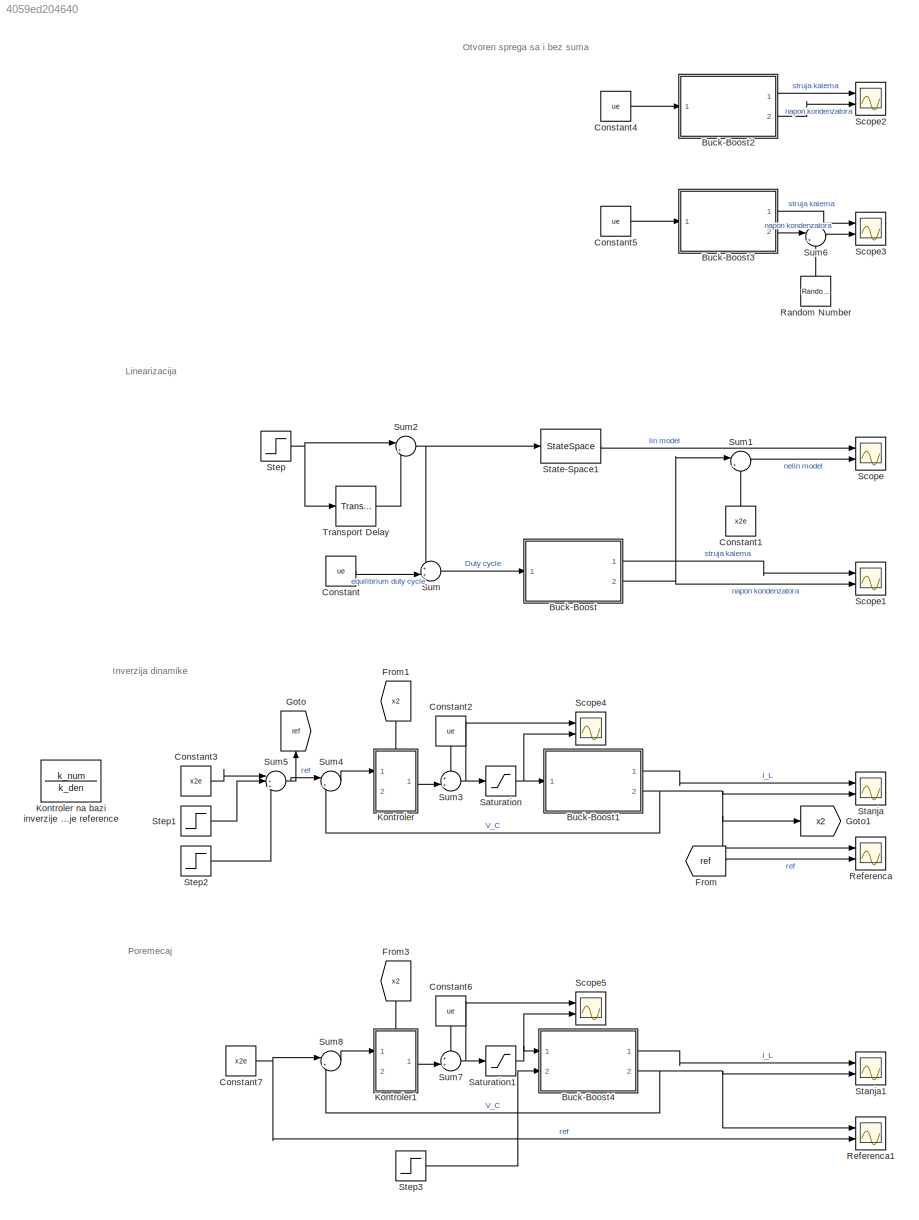
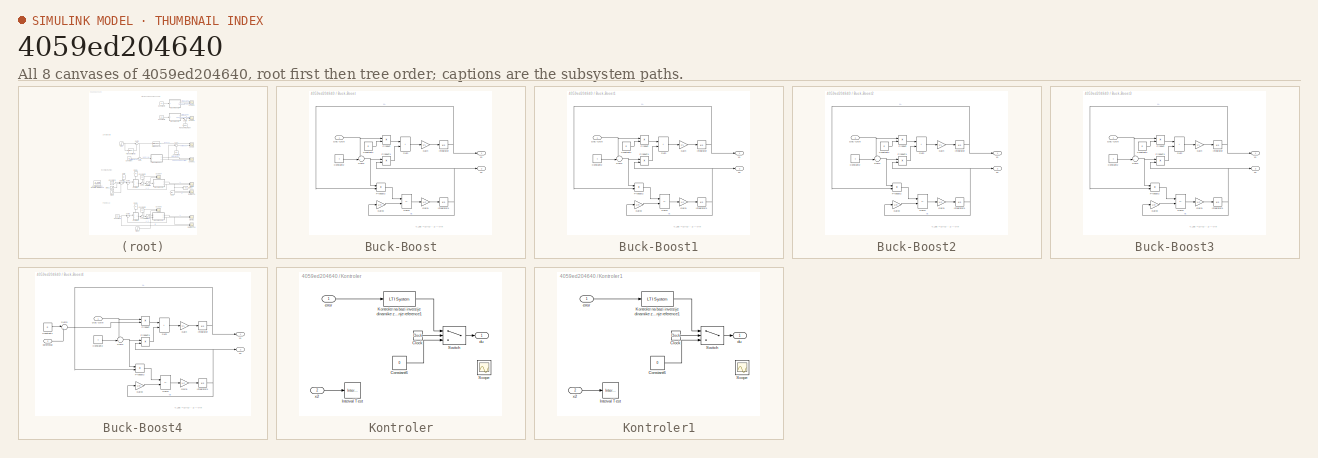
[diagram: thumbnail index - all 8 canvases of the model, root first then tree order]
MODEL slx_4059ed204640
KIND model
CONFIG AbsTol = auto
CONFIG EnableMultiTasking = off
CONFIG FixedStep = 1e-3
CONFIG MaxStep = auto
CONFIG MinStep = auto
CONFIG RelTol = 1e-3
CONFIG SampleTimeConstraint = Unconstrained
CONFIG Solver = FixedStepAuto
CONFIG SolverName = FixedStepAuto
CONFIG StartTime = 0.0
CONFIG StopTime = sim_duration
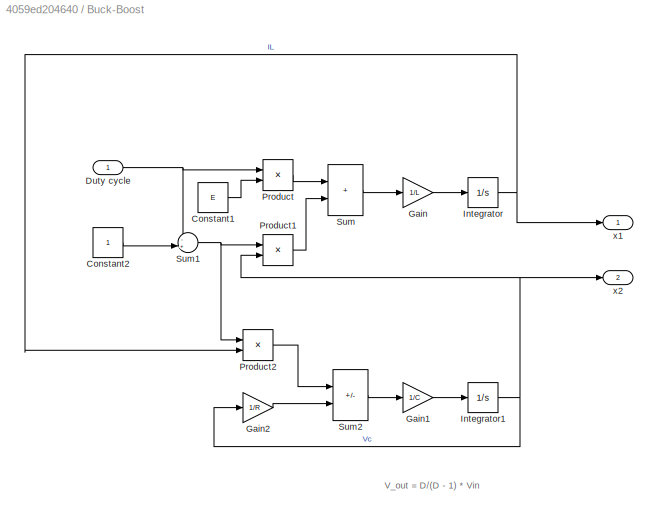
BLOCK [SubSystem] Buck-Boost
  Ports = [1, 2]
  RequestExecContextInheritance = off
BLOCK [Constant] Buck-Boost/Constant1
  Value = E
BLOCK [Constant] Buck-Boost/Constant2
BLOCK [Inport] Buck-Boost/Duty cycle
BLOCK [Gain] Buck-Boost/Gain
  Gain = 1/L
BLOCK [Gain] Buck-Boost/Gain1
  Gain = 1/C
BLOCK [Gain] Buck-Boost/Gain2
  Gain = 1/R
BLOCK [Integrator] Buck-Boost/Integrator
  Ports = [1, 1]
BLOCK [Integrator] Buck-Boost/Integrator1
  Ports = [1, 1]
BLOCK [Product] Buck-Boost/Product
  Ports = [2, 1]
BLOCK [Product] Buck-Boost/Product1
  Ports = [2, 1]
BLOCK [Product] Buck-Boost/Product2
  Ports = [2, 1]
BLOCK [Sum] Buck-Boost/Sum
  IconShape = rectangular
  Ports = [2, 1]
BLOCK [Sum] Buck-Boost/Sum1
  Inputs = -+|
  Ports = [2, 1]
BLOCK [Sum] Buck-Boost/Sum2
  IconShape = rectangular
  Inputs = --
  Ports = [2, 1]
BLOCK [Outport] Buck-Boost/x1
BLOCK [Outport] Buck-Boost/x2
  Port = 2
BLOCK [SubSystem] Buck-Boost1
  Ports = [1, 2]
  RequestExecContextInheritance = off
BLOCK [Constant] Buck-Boost1/Constant1
  Value = E
BLOCK [Constant] Buck-Boost1/Constant2
BLOCK [Inport] Buck-Boost1/Duty cycle
BLOCK [Gain] Buck-Boost1/Gain
  Gain = 1/L
BLOCK [Gain] Buck-Boost1/Gain1
  Gain = 1/C
BLOCK [Gain] Buck-Boost1/Gain2
  Gain = 1/R
BLOCK [Integrator] Buck-Boost1/Integrator
  Ports = [1, 1]
BLOCK [Integrator] Buck-Boost1/Integrator1
  Ports = [1, 1]
BLOCK [Product] Buck-Boost1/Product
  Ports = [2, 1]
BLOCK [Product] Buck-Boost1/Product1
  Ports = [2, 1]
BLOCK [Product] Buck-Boost1/Product2
  Ports = [2, 1]
BLOCK [Sum] Buck-Boost1/Sum
  IconShape = rectangular
  Ports = [2, 1]
BLOCK [Sum] Buck-Boost1/Sum1
  Inputs = -+|
  Ports = [2, 1]
BLOCK [Sum] Buck-Boost1/Sum2
  IconShape = rectangular
  Inputs = --
  Ports = [2, 1]
BLOCK [Outport] Buck-Boost1/x1
BLOCK [Outport] Buck-Boost1/x2
  Port = 2
BLOCK [SubSystem] Buck-Boost2
  Ports = [1, 2]
  RequestExecContextInheritance = off
BLOCK [Constant] Buck-Boost2/Constant1
  Value = E
BLOCK [Constant] Buck-Boost2/Constant2
BLOCK [Inport] Buck-Boost2/Duty cycle
BLOCK [Gain] Buck-Boost2/Gain
  Gain = 1/L
BLOCK [Gain] Buck-Boost2/Gain1
  Gain = 1/C
BLOCK [Gain] Buck-Boost2/Gain2
  Gain = 1/R
BLOCK [Integrator] Buck-Boost2/Integrator
  Ports = [1, 1]
BLOCK [Integrator] Buck-Boost2/Integrator1
  Ports = [1, 1]
BLOCK [Product] Buck-Boost2/Product
  Ports = [2, 1]
BLOCK [Product] Buck-Boost2/Product1
  Ports = [2, 1]
BLOCK [Product] Buck-Boost2/Product2
  Ports = [2, 1]
BLOCK [Sum] Buck-Boost2/Sum
  IconShape = rectangular
  Ports = [2, 1]
BLOCK [Sum] Buck-Boost2/Sum1
  Inputs = -+|
  Ports = [2, 1]
BLOCK [Sum] Buck-Boost2/Sum2
  IconShape = rectangular
  Inputs = --
  Ports = [2, 1]
BLOCK [Outport] Buck-Boost2/x1
BLOCK [Outport] Buck-Boost2/x2
  Port = 2
BLOCK [SubSystem] Buck-Boost3
  Ports = [1, 2]
  RequestExecContextInheritance = off
BLOCK [Constant] Buck-Boost3/Constant1
  Value = E
BLOCK [Constant] Buck-Boost3/Constant2
BLOCK [Inport] Buck-Boost3/Duty cycle
BLOCK [Gain] Buck-Boost3/Gain
  Gain = 1/L
BLOCK [Gain] Buck-Boost3/Gain1
  Gain = 1/C
BLOCK [Gain] Buck-Boost3/Gain2
  Gain = 1/R
BLOCK [Integrator] Buck-Boost3/Integrator
  Ports = [1, 1]
BLOCK [Integrator] Buck-Boost3/Integrator1
  Ports = [1, 1]
BLOCK [Product] Buck-Boost3/Product
  Ports = [2, 1]
BLOCK [Product] Buck-Boost3/Product1
  Ports = [2, 1]
BLOCK [Product] Buck-Boost3/Product2
  Ports = [2, 1]
BLOCK [Sum] Buck-Boost3/Sum
  IconShape = rectangular
  Ports = [2, 1]
BLOCK [Sum] Buck-Boost3/Sum1
  Inputs = -+|
  Ports = [2, 1]
BLOCK [Sum] Buck-Boost3/Sum2
  IconShape = rectangular
  Inputs = --
  Ports = [2, 1]
BLOCK [Outport] Buck-Boost3/x1
BLOCK [Outport] Buck-Boost3/x2
  Port = 2
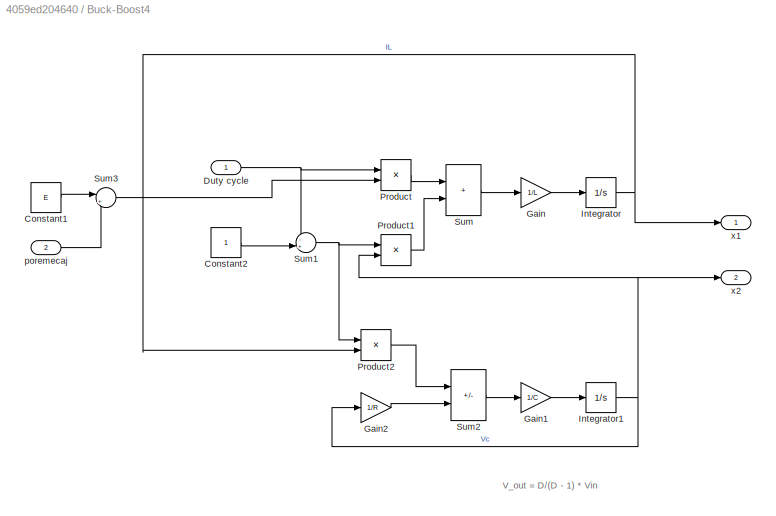
BLOCK [SubSystem] Buck-Boost4
  Ports = [2, 2]
  RequestExecContextInheritance = off
BLOCK [Constant] Buck-Boost4/Constant1
  Value = E
BLOCK [Constant] Buck-Boost4/Constant2
BLOCK [Inport] Buck-Boost4/Duty cycle
BLOCK [Gain] Buck-Boost4/Gain
  Gain = 1/L
BLOCK [Gain] Buck-Boost4/Gain1
  Gain = 1/C
BLOCK [Gain] Buck-Boost4/Gain2
  Gain = 1/R
BLOCK [Integrator] Buck-Boost4/Integrator
  Ports = [1, 1]
BLOCK [Integrator] Buck-Boost4/Integrator1
  Ports = [1, 1]
BLOCK [Product] Buck-Boost4/Product
  Ports = [2, 1]
BLOCK [Product] Buck-Boost4/Product1
  Ports = [2, 1]
BLOCK [Product] Buck-Boost4/Product2
  Ports = [2, 1]
BLOCK [Sum] Buck-Boost4/Sum
  IconShape = rectangular
  Ports = [2, 1]
BLOCK [Sum] Buck-Boost4/Sum1
  Inputs = -+|
  Ports = [2, 1]
BLOCK [Sum] Buck-Boost4/Sum2
  IconShape = rectangular
  Inputs = --
  Ports = [2, 1]
BLOCK [Sum] Buck-Boost4/Sum3
  Inputs = |++
  Ports = [2, 1]
BLOCK [Inport] Buck-Boost4/poremecaj
  Port = 2
BLOCK [Outport] Buck-Boost4/x1
BLOCK [Outport] Buck-Boost4/x2
  Port = 2
BLOCK [Constant] Constant
  Value = ue
BLOCK [Constant] Constant1
  NameLocation = right
  Value = x2e
BLOCK [Constant] Constant2
  NameLocation = left
  Value = ue
BLOCK [Constant] Constant3
  Value = x2e
BLOCK [Constant] Constant4
  Value = ue
BLOCK [Constant] Constant5
  Value = ue
BLOCK [Constant] Constant6
  NameLocation = left
  Value = ue
BLOCK [Constant] Constant7
  Value = x2e
BLOCK [From] From
  GotoTag = ref
BLOCK [From] From1
  GotoTag = x2
  NameLocation = left
  TagVisibility = global
BLOCK [From] From3
  GotoTag = x2
  NameLocation = left
  TagVisibility = global
BLOCK [Goto] Goto
  GotoTag = ref
  NameLocation = right
BLOCK [Goto] Goto1
  GotoTag = x2
  TagVisibility = global
BLOCK [SubSystem] Kontroler
  PortSchema = {"entries":[{"content":{"sides":[{"content":{"connectorIds":["In1"]},"type":"ConnectorPlacement.EquallySpacedRectSide","uuid":"8063b38c-d7a1-4af9-8550-680c34d00d56"},{"content":{"connectorIds":["Out1"],"side":"RIGHT"},"type":"ConnectorPlacement.EquallySpacedRectSide","uuid":"3a9c754f-67ed-4f11-8bdd-a0f7ebf28da2"},{"content":{"connectorIds":["In2"],"side":"TOP"},"type":"ConnectorPlacement.EquallySp...<+247ch>
  Ports = [2, 1]
  RequestExecContextInheritance = off
BLOCK [TransferFcn] Kontroler na bazi inverzije dinamike za pracenje reference
  Commented = on
  Denominator = k_den
  Numerator = k_num
BLOCK [Clock] Kontroler/Clock
BLOCK [Constant] Kontroler/Constant6
  Value = 0
BLOCK [Reference] Kontroler/Interval Test  REF=simulink/Logic and Bit
Operations/Interval Test
  Ports = [1, 1]
  SourceBlock = simulink/Logic and Bit\nOperations/Interval Test
  SourceProductBaseCode = SL
  SourceType = Interval Test
BLOCK [Reference] Kontroler/Kontroler na bazi inverzije dinamike za pracenje reference1  REF=cstblocks/LTI System
  Ports = [1, 1]
  SourceBlock = cstblocks/LTI System
  SourceProductBaseCode = CT
  SourceType = LTI Block
BLOCK [Scope] Kontroler/Scope
  Floating = off
  NumInputPorts = 1
  Ports = [1]
  ScopeSpecificationString = Simulink.scopes.TimeScopeBlockCfg('CurrentConfiguration', extmgr.ConfigurationSet(extmgr.Configuration('Core','General UI',true),extmgr.Configuration('Core','Source UI',true),extmgr.Configuration('Sources','WiredSimulink',true,'DataLoggingVariableName','ScopeData1'),extmgr.Configuration('Visuals','Time Domain',true,'SerializedDisplays',{struct('MinYLimReal','-0.125','MaxYLimReal','1.125','YLabelRe...<+1435ch>
BLOCK [Switch] Kontroler/Switch
  Criteria = u2 > Threshold
  InputSameDT = off
  SaturateOnIntegerOverflow = off
BLOCK [Outport] Kontroler/du
BLOCK [Inport] Kontroler/error
BLOCK [Inport] Kontroler/x2
  Port = 2
BLOCK [SubSystem] Kontroler1
  PortSchema = {"entries":[{"content":{"sides":[{"content":{"connectorIds":["In1"]},"type":"ConnectorPlacement.EquallySpacedRectSide","uuid":"8063b38c-d7a1-4af9-8550-680c34d00d56"},{"content":{"connectorIds":["Out1"],"side":"RIGHT"},"type":"ConnectorPlacement.EquallySpacedRectSide","uuid":"3a9c754f-67ed-4f11-8bdd-a0f7ebf28da2"},{"content":{"connectorIds":["In2"],"side":"TOP"},"type":"ConnectorPlacement.EquallySp...<+247ch>
  Ports = [2, 1]
  RequestExecContextInheritance = off
BLOCK [Clock] Kontroler1/Clock
BLOCK [Constant] Kontroler1/Constant6
  Value = 0
BLOCK [Reference] Kontroler1/Interval Test  REF=simulink/Logic and Bit
Operations/Interval Test
  Ports = [1, 1]
  SourceBlock = simulink/Logic and Bit\nOperations/Interval Test
  SourceProductBaseCode = SL
  SourceType = Interval Test
BLOCK [Reference] Kontroler1/Kontroler na bazi inverzije dinamike za pracenje reference1  REF=cstblocks/LTI System
  Ports = [1, 1]
  SourceBlock = cstblocks/LTI System
  SourceProductBaseCode = CT
  SourceType = LTI Block
BLOCK [Scope] Kontroler1/Scope
  Floating = off
  NumInputPorts = 1
  Ports = [1]
  ScopeSpecificationString = Simulink.scopes.TimeScopeBlockCfg('CurrentConfiguration', extmgr.ConfigurationSet(extmgr.Configuration('Core','General UI',true),extmgr.Configuration('Core','Source UI',true),extmgr.Configuration('Sources','WiredSimulink',true,'DataLoggingVariableName','ScopeData1'),extmgr.Configuration('Visuals','Time Domain',true,'SerializedDisplays',{struct('MinYLimReal','-0.125','MaxYLimReal','1.125','YLabelRe...<+1426ch>
BLOCK [Switch] Kontroler1/Switch
  Criteria = u2 > Threshold
  InputSameDT = off
  SaturateOnIntegerOverflow = off
BLOCK [Outport] Kontroler1/du
BLOCK [Inport] Kontroler1/error
BLOCK [Inport] Kontroler1/x2
  Port = 2
BLOCK [RandomNumber] Random Number
  NameLocation = right
  SampleTime = 1e-3
  Variance = (0.05 * abs(x2e))^2
BLOCK [Scope] Referenca
  Floating = off
  NumInputPorts = 2
  Ports = [2]
  ScopeSpecificationString = Simulink.scopes.TimeScopeBlockCfg('CurrentConfiguration', extmgr.ConfigurationSet(extmgr.Configuration('Core','General UI',true),extmgr.Configuration('Core','Source UI',true),extmgr.Configuration('Sources','WiredSimulink',true,'DataLoggingVariableName','ScopeData2'),extmgr.Configuration('Visuals','Time Domain',true,'SerializedDisplays',{struct('MinYLimReal','-34.18974','MaxYLimReal','-5.3489','YLa...<+1447ch>
BLOCK [Scope] Referenca1
  Floating = off
  NumInputPorts = 2
  Ports = [2]
  ScopeSpecificationString = Simulink.scopes.TimeScopeBlockCfg('CurrentConfiguration', extmgr.ConfigurationSet(extmgr.Configuration('Core','General UI',true),extmgr.Configuration('Core','Source UI',true),extmgr.Configuration('Sources','WiredSimulink',true,'DataLoggingVariableName','ScopeData1'),extmgr.Configuration('Visuals','Time Domain',true,'SerializedDisplays',{struct('MinYLimReal','-58.26569','MaxYLimReal','6.29353','YLa...<+1441ch>
BLOCK [Saturate] Saturation
  LowerLimit = 0
  UpperLimit = 1
BLOCK [Saturate] Saturation1
  LowerLimit = 0
  UpperLimit = 1
BLOCK [Scope] Scope
  Floating = off
  NumInputPorts = 2
  Ports = [2]
  ScopeSpecificationString = Simulink.scopes.TimeScopeBlockCfg('CurrentConfiguration', extmgr.ConfigurationSet(extmgr.Configuration('Core','General UI',true),extmgr.Configuration('Core','Source UI',true),extmgr.Configuration('Sources','WiredSimulink',true,'DataLoggingVariableName','ScopeData1'),extmgr.Configuration('Visuals','Time Domain',true,'SerializedDisplays',{struct('MinYLimReal','-17.97883','MaxYLimReal','26.99765','YL...<+1459ch>
BLOCK [Scope] Scope1
  Floating = off
  NumInputPorts = 2
  Ports = [2]
  ScopeSpecificationString = Simulink.scopes.TimeScopeBlockCfg('CurrentConfiguration', extmgr.ConfigurationSet(extmgr.Configuration('Core','General UI',true),extmgr.Configuration('Core','Source UI',true),extmgr.Configuration('Sources','WiredSimulink',true,'DataLoggingVariableName','ScopeData1'),extmgr.Configuration('Visuals','Time Domain',true,'SerializedDisplays',{struct('MinYLimReal','-40.99866','MaxYLimReal','9.17614','YLa...<+1468ch>
BLOCK [Scope] Scope2
  Floating = off
  NumInputPorts = 2
  Ports = [2]
  ScopeSpecificationString = Simulink.scopes.TimeScopeBlockCfg('CurrentConfiguration', extmgr.ConfigurationSet(extmgr.Configuration('Core','General UI',true),extmgr.Configuration('Core','Source UI',true),extmgr.Configuration('Sources','WiredSimulink',true,'DataLoggingVariableName','ScopeData1'),extmgr.Configuration('Visuals','Time Domain',true),extmgr.Configuration('Tools','Plot Navigation',true),extmgr.Configuration('Tools',...<+40ch>
BLOCK [Scope] Scope3
  Floating = off
  NumInputPorts = 2
  Ports = [2]
  ScopeSpecificationString = Simulink.scopes.TimeScopeBlockCfg('CurrentConfiguration', extmgr.ConfigurationSet(extmgr.Configuration('Core','General UI',true),extmgr.Configuration('Core','Source UI',true),extmgr.Configuration('Sources','WiredSimulink',true,'DataLoggingVariableName','ScopeData2'),extmgr.Configuration('Visuals','Time Domain',true),extmgr.Configuration('Tools','Plot Navigation',true),extmgr.Configuration('Tools',...<+40ch>
BLOCK [Scope] Scope4
  Floating = off
  NumInputPorts = 2
  Ports = [2]
  ScopeSpecificationString = Simulink.scopes.TimeScopeBlockCfg('CurrentConfiguration', extmgr.ConfigurationSet(extmgr.Configuration('Core','General UI',true),extmgr.Configuration('Core','Source UI',true),extmgr.Configuration('Sources','WiredSimulink',true,'DataLoggingVariableName','ScopeData3'),extmgr.Configuration('Visuals','Time Domain',true,'SerializedDisplays',{struct('MinYLimReal','0.5077','MaxYLimReal','0.77377','YLabel...<+1414ch>
BLOCK [Scope] Scope5
  Floating = off
  NumInputPorts = 2
  Ports = [2]
  ScopeSpecificationString = Simulink.scopes.TimeScopeBlockCfg('CurrentConfiguration', extmgr.ConfigurationSet(extmgr.Configuration('Core','General UI',true),extmgr.Configuration('Core','Source UI',true),extmgr.Configuration('Sources','WiredSimulink',true,'DataLoggingVariableName','ScopeData2'),extmgr.Configuration('Visuals','Time Domain',true,'SerializedDisplays',{struct('MinYLimReal','0.5077','MaxYLimReal','0.77377','YLabel...<+1397ch>
BLOCK [Scope] Stanja
  Floating = off
  NumInputPorts = 2
  Ports = [2]
  ScopeSpecificationString = Simulink.scopes.TimeScopeBlockCfg('CurrentConfiguration', extmgr.ConfigurationSet(extmgr.Configuration('Core','General UI',true),extmgr.Configuration('Core','Source UI',true),extmgr.Configuration('Sources','WiredSimulink',true,'DataLoggingVariableName','ScopeData1'),extmgr.Configuration('Visuals','Time Domain',true,'SerializedDisplays',{struct('MinYLimReal','-57.65482','MaxYLimReal','15.04043','YL...<+1416ch>
BLOCK [Scope] Stanja1
  Floating = off
  NumInputPorts = 2
  Ports = [2]
  ScopeSpecificationString = Simulink.scopes.TimeScopeBlockCfg('CurrentConfiguration', extmgr.ConfigurationSet(extmgr.Configuration('Core','General UI',true),extmgr.Configuration('Core','Source UI',true),extmgr.Configuration('Sources','WiredSimulink',true,'DataLoggingVariableName','ScopeData3'),extmgr.Configuration('Visuals','Time Domain',true,'SerializedDisplays',{struct('MinYLimReal','-57.65482','MaxYLimReal','15.04043','YL...<+1416ch>
BLOCK [StateSpace] State-Space1
  A = A
  B = B
  C = H
  D = 0
  InitialCondition = 0
  Ports = [1, 1]
BLOCK [Step] Step
  After = 0.03*ue
  SampleTime = 0
  Time = 0.3*sim_duration
BLOCK [Step] Step1
  After = 0.05 * x2e
  SampleTime = 0
  Time = 0.3*sim_duration
BLOCK [Step] Step2
  After = 0.1* x2e
  SampleTime = 0
  Time = 0.4*sim_duration
BLOCK [Step] Step3
  After = 2*E
  SampleTime = 0
  Time = 0.5*sim_duration
BLOCK [Sum] Sum
  Inputs = ++|
  Ports = [2, 1]
BLOCK [Sum] Sum1
  Inputs = |+-
  Ports = [2, 1]
BLOCK [Sum] Sum2
  Inputs = |+-
  Ports = [2, 1]
BLOCK [Sum] Sum3
  Inputs = ++|
  Ports = [2, 1]
BLOCK [Sum] Sum4
  Inputs = |+-
  Ports = [2, 1]
BLOCK [Sum] Sum5
  Inputs = |++-
  Ports = [3, 1]
BLOCK [Sum] Sum6
  Inputs = |++
  Ports = [2, 1]
BLOCK [Sum] Sum7
  Inputs = ++|
  Ports = [2, 1]
BLOCK [Sum] Sum8
  Inputs = |+-
  Ports = [2, 1]
BLOCK [TransportDelay] Transport Delay
  BufferSize = 2048
  DelayTime = 0.1*sim_duration
  Ports = [1, 1]
ANNOTATION (root): Inverzija dinamike
ANNOTATION (root): Linearizacija
ANNOTATION (root): Otvoren sprega sa i bez suma
ANNOTATION (root): Poremecaj
ANNOTATION Buck-Boost: V_out = D/(D - 1) * Vin
ANNOTATION Buck-Boost1: V_out = D/(D - 1) * Vin
ANNOTATION Buck-Boost2: V_out = D/(D - 1) * Vin
ANNOTATION Buck-Boost3: V_out = D/(D - 1) * Vin
ANNOTATION Buck-Boost4: V_out = D/(D - 1) * Vin
LINE Buck-Boost/Constant1:1 -> Buck-Boost/Product:2
LINE Buck-Boost/Constant2:1 -> Buck-Boost/Sum1:2
NET Buck-Boost/Duty cycle:1 -> Buck-Boost/Product:1, Buck-Boost/Sum1:1
LINE Buck-Boost/Gain1:1 -> Buck-Boost/Integrator1:1
LINE Buck-Boost/Gain2:1 -> Buck-Boost/Sum2:2
LINE Buck-Boost/Gain:1 -> Buck-Boost/Integrator:1
NET Buck-Boost/Integrator1:1 -> Buck-Boost/Gain2:1, Buck-Boost/Product1:2, Buck-Boost/x2:1
NET Buck-Boost/Integrator:1 -> Buck-Boost/Product2:2, Buck-Boost/x1:1
LINE Buck-Boost/Product1:1 -> Buck-Boost/Sum:2
LINE Buck-Boost/Product2:1 -> Buck-Boost/Sum2:1
LINE Buck-Boost/Product:1 -> Buck-Boost/Sum:1
NET Buck-Boost/Sum1:1 -> Buck-Boost/Product1:1, Buck-Boost/Product2:1
LINE Buck-Boost/Sum2:1 -> Buck-Boost/Gain1:1
LINE Buck-Boost/Sum:1 -> Buck-Boost/Gain:1
LINE Buck-Boost1/Constant1:1 -> Buck-Boost1/Product:2
LINE Buck-Boost1/Constant2:1 -> Buck-Boost1/Sum1:2
NET Buck-Boost1/Duty cycle:1 -> Buck-Boost1/Product:1, Buck-Boost1/Sum1:1
LINE Buck-Boost1/Gain1:1 -> Buck-Boost1/Integrator1:1
LINE Buck-Boost1/Gain2:1 -> Buck-Boost1/Sum2:2
LINE Buck-Boost1/Gain:1 -> Buck-Boost1/Integrator:1
NET Buck-Boost1/Integrator1:1 -> Buck-Boost1/Gain2:1, Buck-Boost1/Product1:2, Buck-Boost1/x2:1
NET Buck-Boost1/Integrator:1 -> Buck-Boost1/Product2:2, Buck-Boost1/x1:1
LINE Buck-Boost1/Product1:1 -> Buck-Boost1/Sum:2
LINE Buck-Boost1/Product2:1 -> Buck-Boost1/Sum2:1
LINE Buck-Boost1/Product:1 -> Buck-Boost1/Sum:1
NET Buck-Boost1/Sum1:1 -> Buck-Boost1/Product1:1, Buck-Boost1/Product2:1
LINE Buck-Boost1/Sum2:1 -> Buck-Boost1/Gain1:1
LINE Buck-Boost1/Sum:1 -> Buck-Boost1/Gain:1
LINE Buck-Boost1:1 -> Stanja:1
NET Buck-Boost1:2 -> Goto1:1, Referenca:1, Stanja:2, Sum4:2
LINE Buck-Boost2/Constant1:1 -> Buck-Boost2/Product:2
LINE Buck-Boost2/Constant2:1 -> Buck-Boost2/Sum1:2
NET Buck-Boost2/Duty cycle:1 -> Buck-Boost2/Product:1, Buck-Boost2/Sum1:1
LINE Buck-Boost2/Gain1:1 -> Buck-Boost2/Integrator1:1
LINE Buck-Boost2/Gain2:1 -> Buck-Boost2/Sum2:2
LINE Buck-Boost2/Gain:1 -> Buck-Boost2/Integrator:1
NET Buck-Boost2/Integrator1:1 -> Buck-Boost2/Gain2:1, Buck-Boost2/Product1:2, Buck-Boost2/x2:1
NET Buck-Boost2/Integrator:1 -> Buck-Boost2/Product2:2, Buck-Boost2/x1:1
LINE Buck-Boost2/Product1:1 -> Buck-Boost2/Sum:2
LINE Buck-Boost2/Product2:1 -> Buck-Boost2/Sum2:1
LINE Buck-Boost2/Product:1 -> Buck-Boost2/Sum:1
NET Buck-Boost2/Sum1:1 -> Buck-Boost2/Product1:1, Buck-Boost2/Product2:1
LINE Buck-Boost2/Sum2:1 -> Buck-Boost2/Gain1:1
LINE Buck-Boost2/Sum:1 -> Buck-Boost2/Gain:1
LINE Buck-Boost2:1 -> Scope2:1
LINE Buck-Boost2:2 -> Scope2:2
LINE Buck-Boost3/Constant1:1 -> Buck-Boost3/Product:2
LINE Buck-Boost3/Constant2:1 -> Buck-Boost3/Sum1:2
NET Buck-Boost3/Duty cycle:1 -> Buck-Boost3/Product:1, Buck-Boost3/Sum1:1
LINE Buck-Boost3/Gain1:1 -> Buck-Boost3/Integrator1:1
LINE Buck-Boost3/Gain2:1 -> Buck-Boost3/Sum2:2
LINE Buck-Boost3/Gain:1 -> Buck-Boost3/Integrator:1
NET Buck-Boost3/Integrator1:1 -> Buck-Boost3/Gain2:1, Buck-Boost3/Product1:2, Buck-Boost3/x2:1
NET Buck-Boost3/Integrator:1 -> Buck-Boost3/Product2:2, Buck-Boost3/x1:1
LINE Buck-Boost3/Product1:1 -> Buck-Boost3/Sum:2
LINE Buck-Boost3/Product2:1 -> Buck-Boost3/Sum2:1
LINE Buck-Boost3/Product:1 -> Buck-Boost3/Sum:1
NET Buck-Boost3/Sum1:1 -> Buck-Boost3/Product1:1, Buck-Boost3/Product2:1
LINE Buck-Boost3/Sum2:1 -> Buck-Boost3/Gain1:1
LINE Buck-Boost3/Sum:1 -> Buck-Boost3/Gain:1
LINE Buck-Boost3:1 -> Scope3:1
LINE Buck-Boost3:2 -> Sum6:1
LINE Buck-Boost4/Constant1:1 -> Buck-Boost4/Sum3:1
LINE Buck-Boost4/Constant2:1 -> Buck-Boost4/Sum1:2
NET Buck-Boost4/Duty cycle:1 -> Buck-Boost4/Product:1, Buck-Boost4/Sum1:1
LINE Buck-Boost4/Gain1:1 -> Buck-Boost4/Integrator1:1
LINE Buck-Boost4/Gain2:1 -> Buck-Boost4/Sum2:2
LINE Buck-Boost4/Gain:1 -> Buck-Boost4/Integrator:1
NET Buck-Boost4/Integrator1:1 -> Buck-Boost4/Gain2:1, Buck-Boost4/Product1:2, Buck-Boost4/x2:1
NET Buck-Boost4/Integrator:1 -> Buck-Boost4/Product2:2, Buck-Boost4/x1:1
LINE Buck-Boost4/Product1:1 -> Buck-Boost4/Sum:2
LINE Buck-Boost4/Product2:1 -> Buck-Boost4/Sum2:1
LINE Buck-Boost4/Product:1 -> Buck-Boost4/Sum:1
NET Buck-Boost4/Sum1:1 -> Buck-Boost4/Product1:1, Buck-Boost4/Product2:1
LINE Buck-Boost4/Sum2:1 -> Buck-Boost4/Gain1:1
LINE Buck-Boost4/Sum3:1 -> Buck-Boost4/Product:2
LINE Buck-Boost4/Sum:1 -> Buck-Boost4/Gain:1
LINE Buck-Boost4/poremecaj:1 -> Buck-Boost4/Sum3:2
LINE Buck-Boost4:1 -> Stanja1:1
NET Buck-Boost4:2 -> Referenca1:1, Stanja1:2, Sum8:2
LINE Buck-Boost:1 -> Scope1:1
NET Buck-Boost:2 -> Scope1:2, Sum1:1
LINE Constant1:1 -> Sum1:2
LINE Constant2:1 -> Sum3:1
LINE Constant3:1 -> Sum5:1
LINE Constant4:1 -> Buck-Boost2:1
LINE Constant5:1 -> Buck-Boost3:1
LINE Constant6:1 -> Sum7:1
NET Constant7:1 -> Referenca1:2, Sum8:1
LINE Constant:1 -> Sum:2
LINE From1:1 -> Kontroler:2
LINE From3:1 -> Kontroler1:2
LINE From:1 -> Referenca:2
LINE Kontroler/Clock:1 -> Kontroler/Switch:2
LINE Kontroler/Constant6:1 -> Kontroler/Switch:3
LINE Kontroler/Kontroler na bazi inverzije dinamike za pracenje reference1:1 -> Kontroler/Switch:1
LINE Kontroler/Switch:1 -> Kontroler/du:1
LINE Kontroler/error:1 -> Kontroler/Kontroler na bazi inverzije dinamike za pracenje reference1:1
LINE Kontroler/x2:1 -> Kontroler/Interval Test:1
LINE Kontroler1/Clock:1 -> Kontroler1/Switch:2
LINE Kontroler1/Constant6:1 -> Kontroler1/Switch:3
LINE Kontroler1/Kontroler na bazi inverzije dinamike za pracenje reference1:1 -> Kontroler1/Switch:1
LINE Kontroler1/Switch:1 -> Kontroler1/du:1
LINE Kontroler1/error:1 -> Kontroler1/Kontroler na bazi inverzije dinamike za pracenje reference1:1
LINE Kontroler1/x2:1 -> Kontroler1/Interval Test:1
LINE Kontroler1:1 -> Sum7:2
LINE Kontroler:1 -> Sum3:2
LINE Random Number:1 -> Sum6:2
NET Saturation1:1 -> Buck-Boost4:1, Scope5:2
NET Saturation:1 -> Buck-Boost1:1, Scope4:2
LINE State-Space1:1 -> Scope:1
LINE Step1:1 -> Sum5:2
LINE Step2:1 -> Sum5:3
LINE Step3:1 -> Buck-Boost4:2
NET Step:1 -> Sum2:1, Transport Delay:1
LINE Sum1:1 -> Scope:2
NET Sum2:1 -> State-Space1:1, Sum:1
NET Sum3:1 -> Saturation:1, Scope4:1
LINE Sum4:1 -> Kontroler:1
NET Sum5:1 -> Goto:1, Sum4:1
LINE Sum6:1 -> Scope3:2
NET Sum7:1 -> Saturation1:1, Scope5:1
LINE Sum8:1 -> Kontroler1:1
LINE Sum:1 -> Buck-Boost:1
LINE Transport Delay:1 -> Sum2:2
note: NET lines group one-source signal fan-out (src -> all destinations, sorted); 1:1 wires keep LINE
